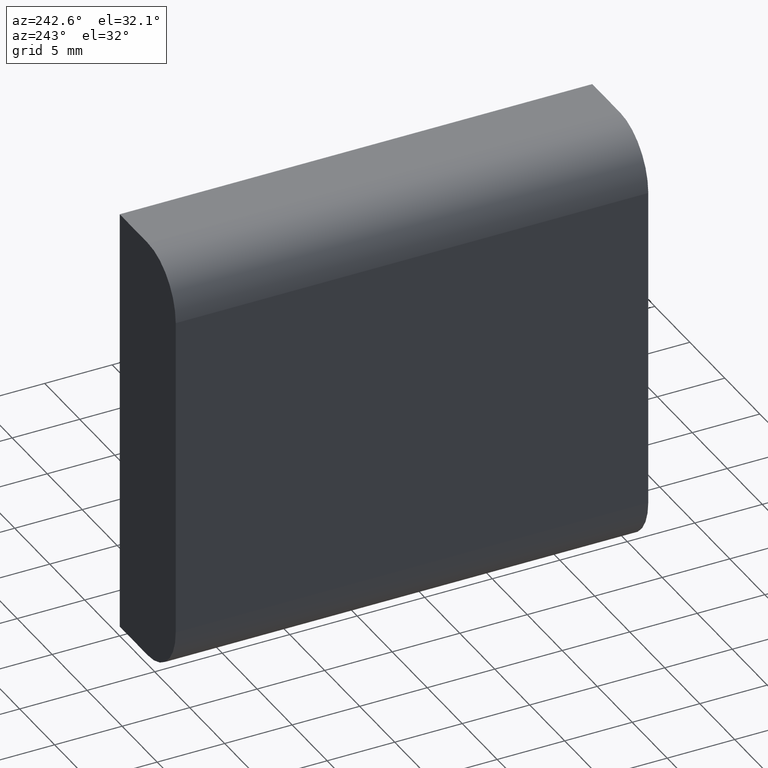
[diagram: clean part render]
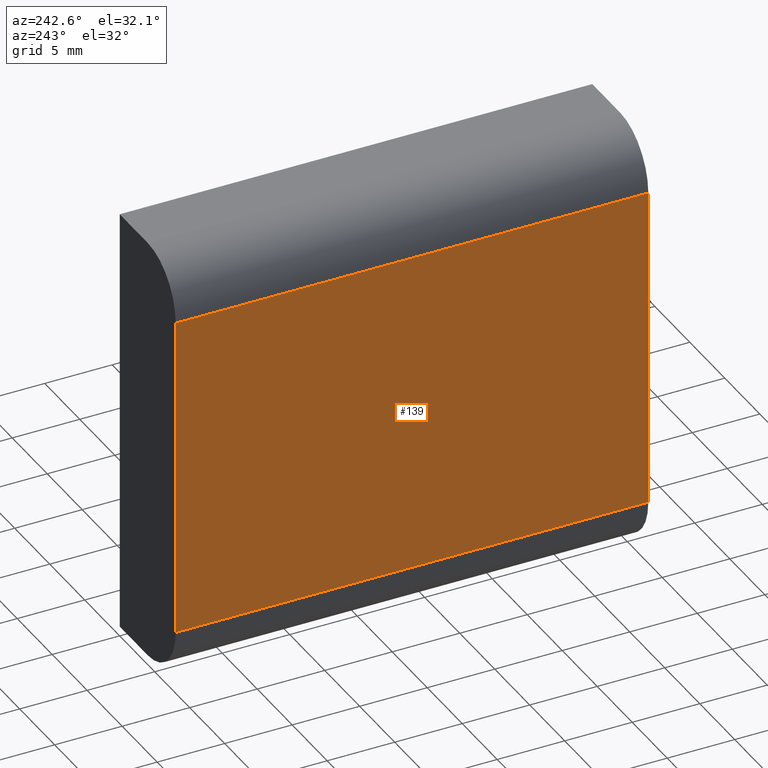
[diagram: same view with one face highlighted and labeled with its STEP entity id]
A machine part, auxiliary view. The second image highlights one B-rep face of the part: STEP entity #139.
In plain terms, the highlighted planar face has unit normal (-1, 0, 0).
Its self-contained STEP definition (entity closure, byte-faithful):
#23=FACE_OUTER_BOUND('',#31,.T.);
#31=EDGE_LOOP('',(#103,#104,#105,#106));
#41=LINE('',#235,#55);
#42=LINE('',#238,#56);
#43=LINE('',#240,#57);
#44=LINE('',#241,#58);
#55=VECTOR('',#194,10.);
#56=VECTOR('',#197,10.);
#57=VECTOR('',#198,10.);
#58=VECTOR('',#199,10.);
#69=VERTEX_POINT('',#231);
#70=VERTEX_POINT('',#233);
#71=VERTEX_POINT('',#237);
#72=VERTEX_POINT('',#239);
#83=EDGE_CURVE('',#69,#70,#41,.T.);
#84=EDGE_CURVE('',#71,#69,#42,.T.);
#85=EDGE_CURVE('',#72,#70,#43,.T.);
#86=EDGE_CURVE('',#71,#72,#44,.T.);
#103=ORIENTED_EDGE('',*,*,#84,.T.);
#104=ORIENTED_EDGE('',*,*,#83,.T.);
#105=ORIENTED_EDGE('',*,*,#85,.F.);
#106=ORIENTED_EDGE('',*,*,#86,.F.);
#132=PLANE('',#172);
#139=ADVANCED_FACE('',(#23),#132,.T.);
#172=AXIS2_PLACEMENT_3D('',#236,#195,#196);
#194=DIRECTION('',(0.,1.,0.));
#195=DIRECTION('center_axis',(-1.,0.,0.));
#196=DIRECTION('ref_axis',(0.,0.,1.));
#197=DIRECTION('',(0.,0.,1.));
#198=DIRECTION('',(0.,0.,1.));
#199=DIRECTION('',(0.,1.,0.));
#231=CARTESIAN_POINT('',(-8.,0.,12.));
#233=CARTESIAN_POINT('',(-8.,35.,12.));
#235=CARTESIAN_POINT('',(-8.,0.,12.));
#236=CARTESIAN_POINT('Origin',(-8.,0.,-12.));
#237=CARTESIAN_POINT('',(-8.,0.,-12.));
#238=CARTESIAN_POINT('',(-8.,0.,-12.));
#239=CARTESIAN_POINT('',(-8.,35.,-12.));
#240=CARTESIAN_POINT('',(-8.,35.,-12.));
#241=CARTESIAN_POINT('',(-8.,0.,-12.));